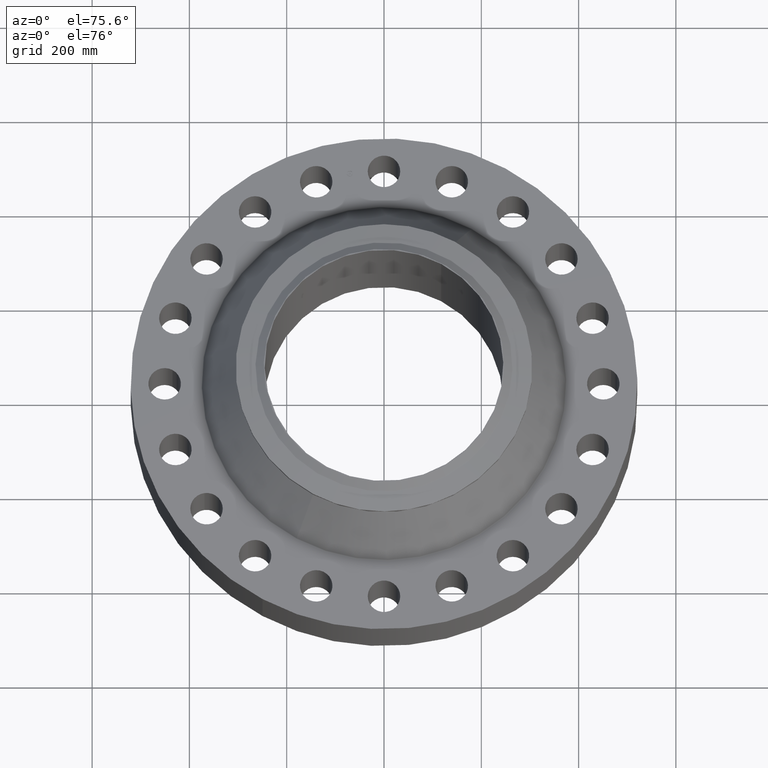
[diagram: clean part render]
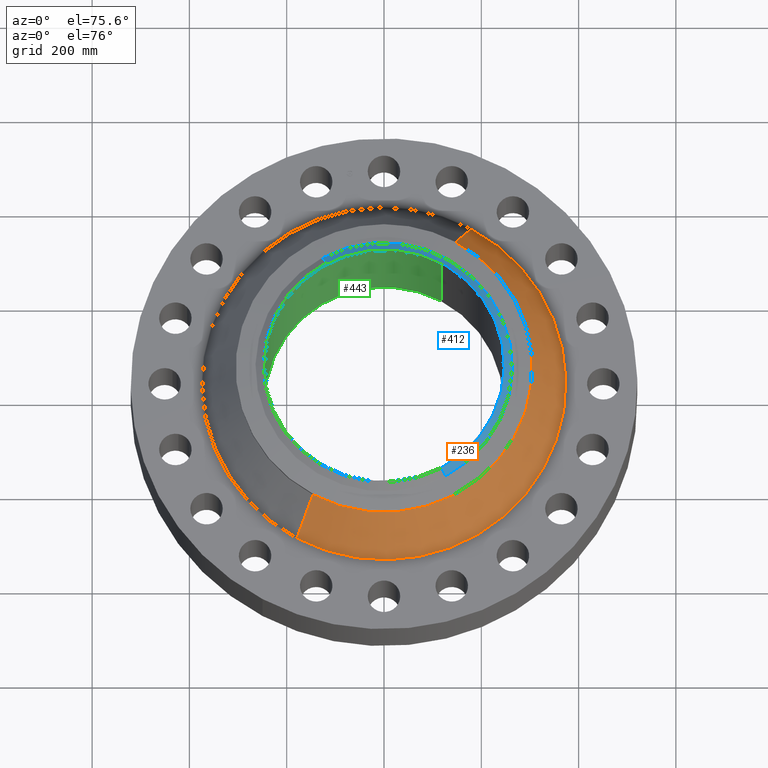
[diagram: same view with three faces highlighted in distinct colors, each labeled with its STEP entity id]
A machine part, auxiliary view with three faces highlighted in distinct colors.
Their STEP definitions:

[orange] entity #236 — the highlighted conical surface has half-angle 28.962 deg.
#172=AXIS2_PLACEMENT_3D('Circle Axis2P3D',#170,#171,$) ;
#209=AXIS2_PLACEMENT_3D('Cone Axis2P3D',#206,#207,#208) ;
#220=AXIS2_PLACEMENT_3D('Circle Axis2P3D',#218,#219,$) ;
#167=CARTESIAN_POINT('Vertex',(7.05510440213,12.9142819835,5.56189158475)) ;
#170=CARTESIAN_POINT('Axis2P3D Location',(0.,0.,5.56189158475)) ;
#174=CARTESIAN_POINT('Vertex',(-7.05510440213,-12.9142819835,5.56189158475)) ;
#206=CARTESIAN_POINT('Axis2P3D Location',(0.,0.,10.4688019131)) ;
#211=CARTESIAN_POINT('Line Origine',(6.4041054327,11.7226363631,8.01534674892)) ;
#215=CARTESIAN_POINT('Vertex',(5.75310646327,10.5309907427,10.4688019131)) ;
#218=CARTESIAN_POINT('Axis2P3D Location',(0.,0.,10.4688019131)) ;
#222=CARTESIAN_POINT('Vertex',(-5.75310646327,-10.5309907427,10.4688019131)) ;
#225=CARTESIAN_POINT('Line Origine',(-6.4041054327,-11.7226363631,8.01534674892)) ;
#171=DIRECTION('Axis2P3D Direction',(0.,0.,-0.0393700787402)) ;
#207=DIRECTION('Axis2P3D Direction',(0.,0.,-0.0393700787402)) ;
#208=DIRECTION('Axis2P3D XDirection',(-0.0188750212049,-0.0345504945626,0.)) ;
#212=DIRECTION('Vector Direction',(0.00913997975422,0.0167306207168,-0.0344463379843)) ;
#219=DIRECTION('Axis2P3D Direction',(0.,0.,-0.0393700787402)) ;
#226=DIRECTION('Vector Direction',(-0.00913997975422,-0.0167306207168,-0.0344463379843)) ;
#213=VECTOR('Line Direction',#212,0.0393700787402) ;
#227=VECTOR('Line Direction',#226,0.0393700787402) ;
#231=ORIENTED_EDGE('',*,*,#176,.F.) ;
#232=ORIENTED_EDGE('',*,*,#217,.T.) ;
#233=ORIENTED_EDGE('',*,*,#224,.T.) ;
#234=ORIENTED_EDGE('',*,*,#229,.F.) ;
#236=ADVANCED_FACE('PartBody',(#235),#210,.T.) ;
#173=CIRCLE('generated circle',#172,14.715745896) ;
#221=CIRCLE('generated circle',#220,12.) ;
#210=CONICAL_SURFACE('Cone',#209,12.,0.505490658612) ;
#176=EDGE_CURVE('',#168,#175,#173,.T.) ;
#217=EDGE_CURVE('',#168,#216,#214,.F.) ;
#224=EDGE_CURVE('',#216,#223,#221,.T.) ;
#229=EDGE_CURVE('',#175,#223,#228,.F.) ;
#230=EDGE_LOOP('',(#231,#232,#233,#234)) ;
#235=FACE_OUTER_BOUND('',#230,.T.) ;
#214=LINE('Line',#211,#213) ;
#228=LINE('Line',#225,#227) ;
#168=VERTEX_POINT('',#167) ;
#175=VERTEX_POINT('',#174) ;
#216=VERTEX_POINT('',#215) ;
#223=VERTEX_POINT('',#222) ;

[blue] entity #412 — the highlighted conical surface has half-angle 52.5 deg.
#347=AXIS2_PLACEMENT_3D('Circle Axis2P3D',#345,#346,$) ;
#385=AXIS2_PLACEMENT_3D('Cone Axis2P3D',#382,#383,#384) ;
#396=AXIS2_PLACEMENT_3D('Circle Axis2P3D',#394,#395,$) ;
#345=CARTESIAN_POINT('Axis2P3D Location',(0.,0.,11.5)) ;
#349=CARTESIAN_POINT('Vertex',(4.66708304319,-8.54303820677,11.5)) ;
#351=CARTESIAN_POINT('Vertex',(-4.66708304319,8.54303820677,11.5)) ;
#382=CARTESIAN_POINT('Axis2P3D Location',(0.,0.,11.5)) ;
#387=CARTESIAN_POINT('Line Origine',(4.82202434574,-8.82665635868,11.2520143726)) ;
#391=CARTESIAN_POINT('Vertex',(4.97696564829,-9.11027451058,11.0040287452)) ;
#394=CARTESIAN_POINT('Axis2P3D Location',(0.,0.,11.0040287452)) ;
#398=CARTESIAN_POINT('Vertex',(-4.97696564829,9.11027451058,11.0040287452)) ;
#401=CARTESIAN_POINT('Line Origine',(-4.82202434574,8.82665635868,11.2520143726)) ;
#346=DIRECTION('Axis2P3D Direction',(0.,0.,-0.0393700787402)) ;
#383=DIRECTION('Axis2P3D Direction',(-0.,-0.,-0.0393700787402)) ;
#384=DIRECTION('Axis2P3D XDirection',(0.0188750212049,-0.0345504945626,0.)) ;
#388=DIRECTION('Vector Direction',(0.014974561121,-0.02741075027,-0.023966985394)) ;
#395=DIRECTION('Axis2P3D Direction',(0.,0.,-0.0393700787402)) ;
#402=DIRECTION('Vector Direction',(-0.014974561121,0.02741075027,-0.023966985394)) ;
#389=VECTOR('Line Direction',#388,0.0393700787402) ;
#403=VECTOR('Line Direction',#402,0.0393700787402) ;
#407=ORIENTED_EDGE('',*,*,#353,.F.) ;
#408=ORIENTED_EDGE('',*,*,#393,.T.) ;
#409=ORIENTED_EDGE('',*,*,#400,.T.) ;
#410=ORIENTED_EDGE('',*,*,#405,.F.) ;
#412=ADVANCED_FACE('PartBody',(#411),#386,.T.) ;
#348=CIRCLE('generated circle',#347,9.73474015752) ;
#397=CIRCLE('generated circle',#396,10.3811024811) ;
#386=CONICAL_SURFACE('Cone',#385,9.73474015752,0.916297857297) ;
#353=EDGE_CURVE('',#350,#352,#348,.F.) ;
#393=EDGE_CURVE('',#350,#392,#390,.T.) ;
#400=EDGE_CURVE('',#392,#399,#397,.F.) ;
#405=EDGE_CURVE('',#352,#399,#404,.T.) ;
#406=EDGE_LOOP('',(#407,#408,#409,#410)) ;
#411=FACE_OUTER_BOUND('',#406,.T.) ;
#390=LINE('Line',#387,#389) ;
#404=LINE('Line',#401,#403) ;
#350=VERTEX_POINT('',#349) ;
#352=VERTEX_POINT('',#351) ;
#392=VERTEX_POINT('',#391) ;
#399=VERTEX_POINT('',#398) ;

[green] entity #443 — the highlighted cylindrical surface (partial cylindrical patch) has radius 245.262 mm, axis along (0, 0, -1).
#365=AXIS2_PLACEMENT_3D('Circle Axis2P3D',#363,#364,$) ;
#416=AXIS2_PLACEMENT_3D('Cylinder Axis2P3D',#413,#414,#415) ;
#427=AXIS2_PLACEMENT_3D('Circle Axis2P3D',#425,#426,$) ;
#363=CARTESIAN_POINT('Axis2P3D Location',(0.,0.,11.5)) ;
#367=CARTESIAN_POINT('Vertex',(-4.62933300078,-8.47393721765,11.5)) ;
#369=CARTESIAN_POINT('Vertex',(4.62933300078,8.47393721765,11.5)) ;
#413=CARTESIAN_POINT('Axis2P3D Location',(0.,0.,5.43750000002)) ;
#418=CARTESIAN_POINT('Line Origine',(-4.62933300078,-8.47393721765,5.43750000002)) ;
#422=CARTESIAN_POINT('Vertex',(-4.62933300078,-8.47393721765,-0.625000000003)) ;
#425=CARTESIAN_POINT('Axis2P3D Location',(0.,0.,-0.625000000003)) ;
#429=CARTESIAN_POINT('Vertex',(4.62933300078,8.47393721765,-0.625000000003)) ;
#432=CARTESIAN_POINT('Line Origine',(4.62933300078,8.47393721765,5.43750000002)) ;
#364=DIRECTION('Axis2P3D Direction',(0.,0.,-0.0393700787402)) ;
#414=DIRECTION('Axis2P3D Direction',(0.,0.,-0.0393700787402)) ;
#415=DIRECTION('Axis2P3D XDirection',(0.0188750212049,0.0345504945626,0.)) ;
#419=DIRECTION('Vector Direction',(0.,0.,-0.0393700787402)) ;
#426=DIRECTION('Axis2P3D Direction',(0.,0.,-0.0393700787402)) ;
#433=DIRECTION('Vector Direction',(0.,0.,-0.0393700787402)) ;
#420=VECTOR('Line Direction',#419,0.0393700787402) ;
#434=VECTOR('Line Direction',#433,0.0393700787402) ;
#438=ORIENTED_EDGE('',*,*,#371,.F.) ;
#439=ORIENTED_EDGE('',*,*,#424,.T.) ;
#440=ORIENTED_EDGE('',*,*,#431,.T.) ;
#441=ORIENTED_EDGE('',*,*,#436,.F.) ;
#443=ADVANCED_FACE('PartBody',(#442),#417,.F.) ;
#366=CIRCLE('generated circle',#365,9.65600000004) ;
#428=CIRCLE('generated circle',#427,9.65600000004) ;
#417=CYLINDRICAL_SURFACE('generated cylinder',#416,9.65600000004) ;
#371=EDGE_CURVE('',#368,#370,#366,.T.) ;
#424=EDGE_CURVE('',#368,#423,#421,.T.) ;
#431=EDGE_CURVE('',#423,#430,#428,.T.) ;
#436=EDGE_CURVE('',#370,#430,#435,.T.) ;
#437=EDGE_LOOP('',(#438,#439,#440,#441)) ;
#442=FACE_OUTER_BOUND('',#437,.T.) ;
#421=LINE('Line',#418,#420) ;
#435=LINE('Line',#432,#434) ;
#368=VERTEX_POINT('',#367) ;
#370=VERTEX_POINT('',#369) ;
#423=VERTEX_POINT('',#422) ;
#430=VERTEX_POINT('',#429) ;